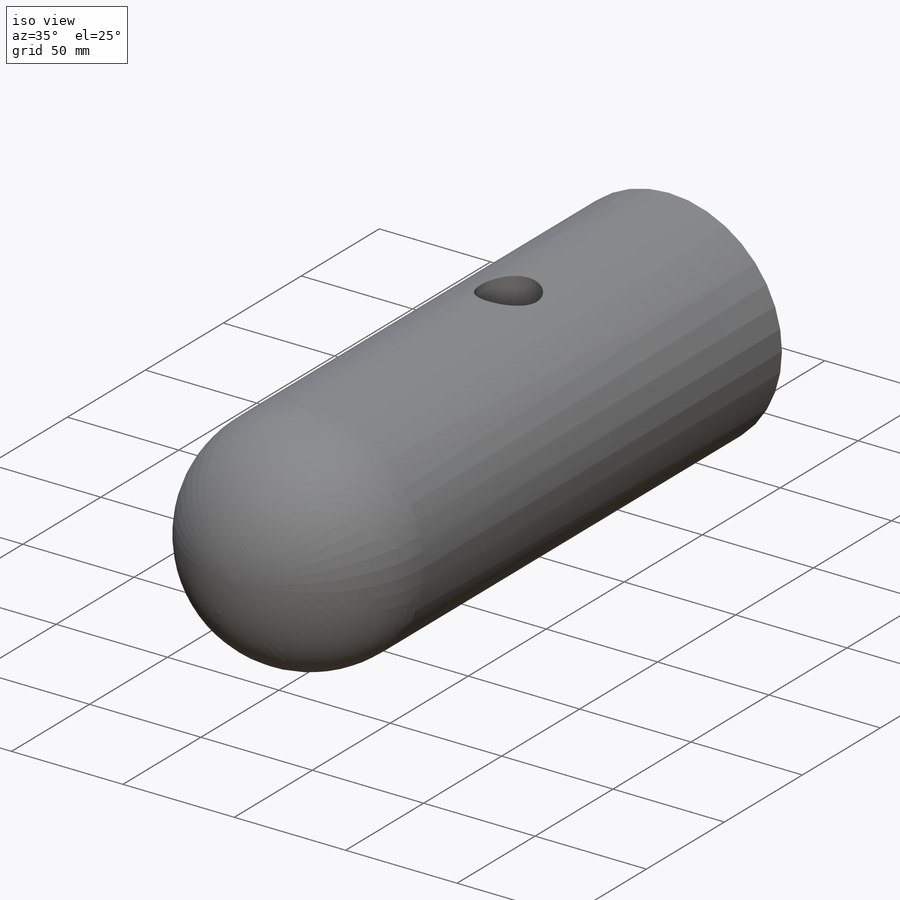
[diagram: iso view]
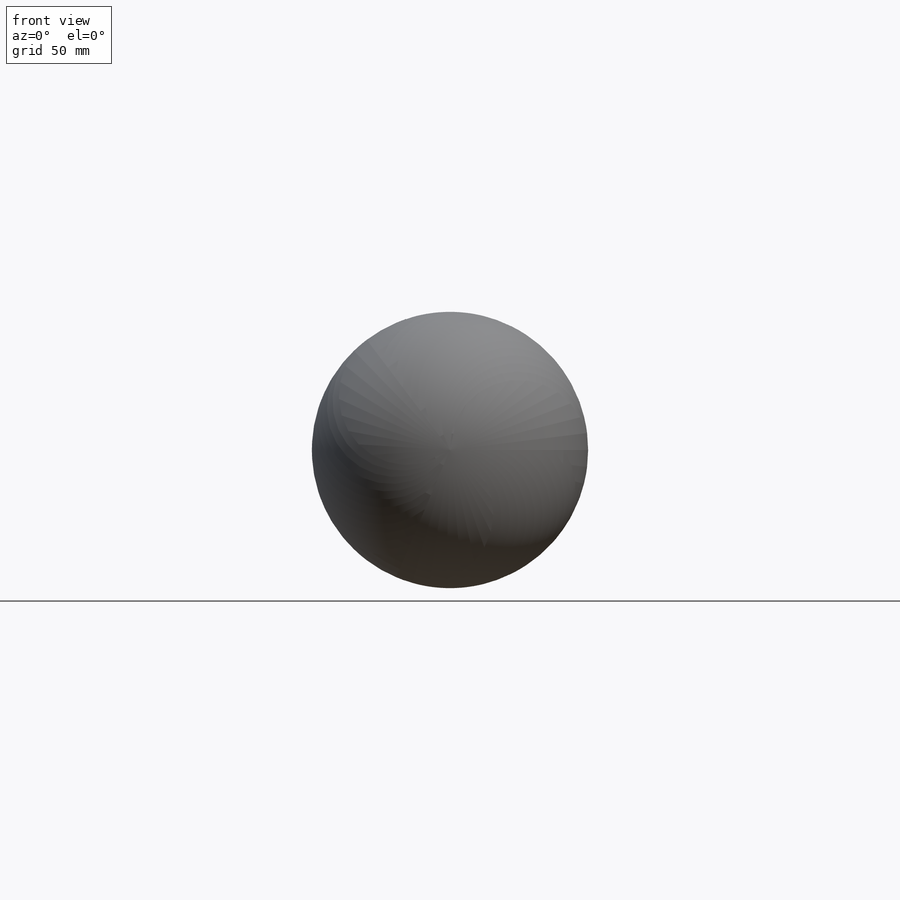
[diagram: front view]
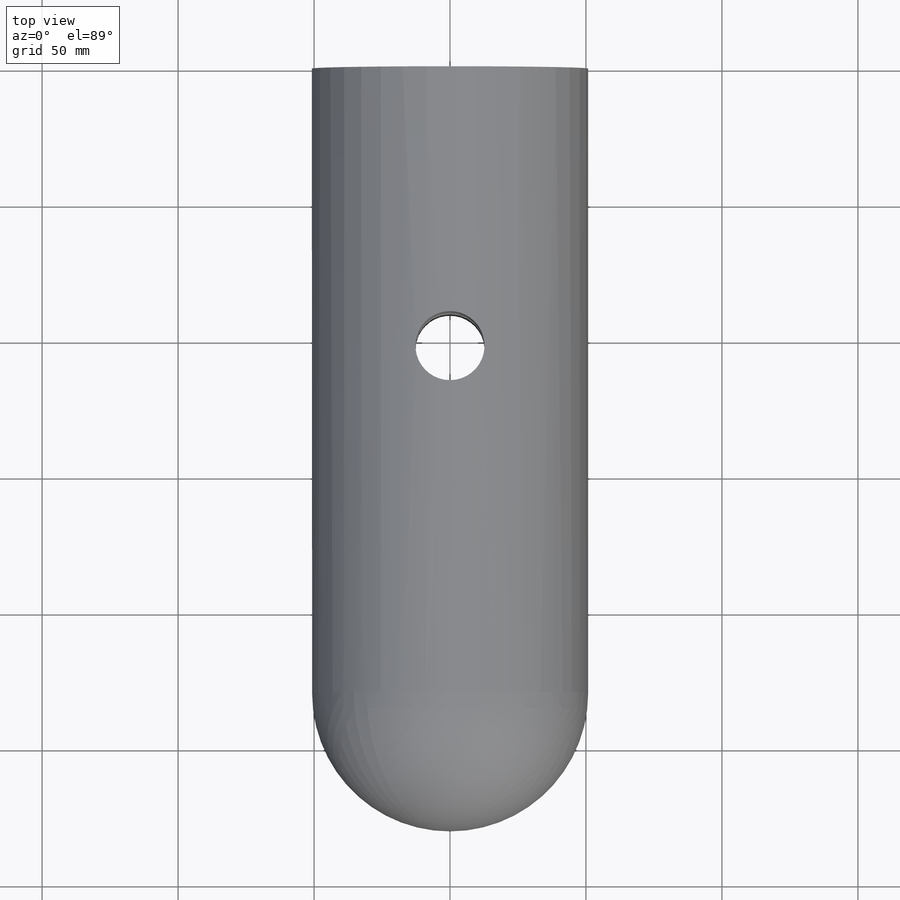
[diagram: top view]
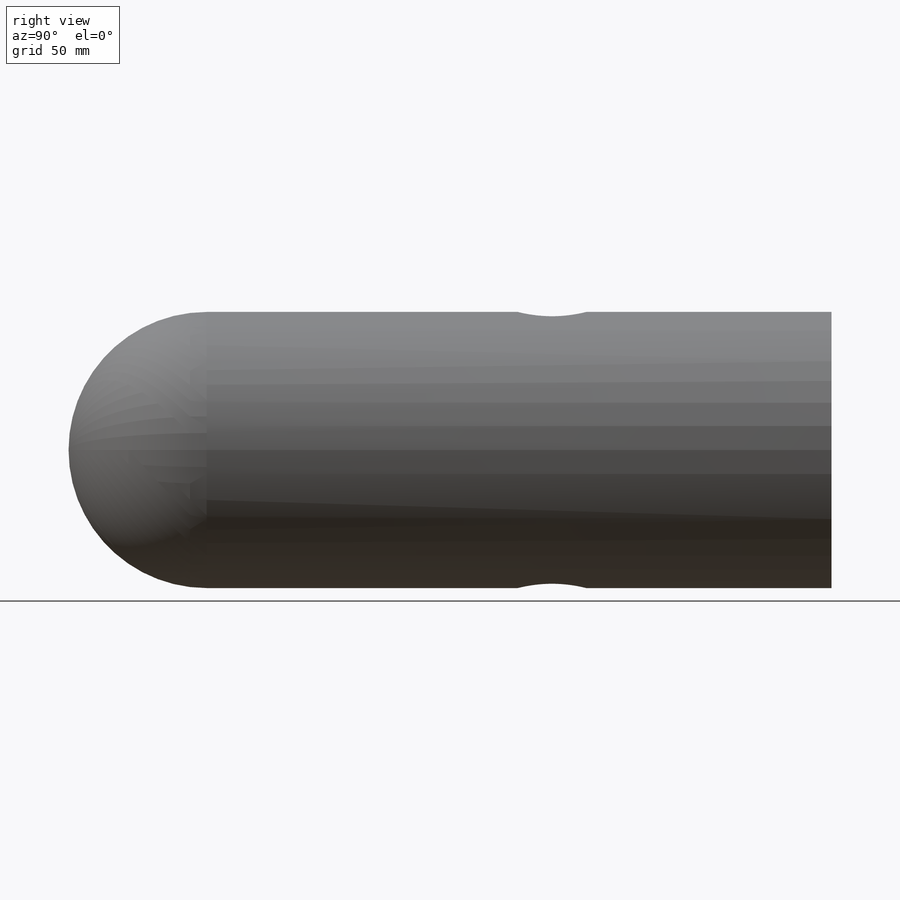
[diagram: right view]
SOLIDWORKS PART (.sldprt)
format: sldprt  version: not decoded by parser v0  size: 222,720 bytes
history: native  units: mm
features: sketch x3, cut_extrude x2, material x1, extrude x1, dome x1, shell x1 (+11 scaffold rows collapsed)
feature tree (20):
  scaffold x11  (default folders/planes/origin — collapsed)
  material  "Material <not specified>"
  sketch  "Sketch1"  dims[D1=101.6mm]
  extrude  "Boss-Extrude1"  Depth=229.755989mm
  dome  "Dome1"
  sketch  "Sketch2"  dims[c1.D1=~7.730205mm c1.D2=~12.037105mm c2.D1=127.0mm]
  cut_extrude  "Cut-Extrude1"  Depth=228.6mm
  shell  "Shell1"  Thickness=6.35mm
  sketch  "Sketch3"  dims[D1=6.35mm D2=6.35mm]
  cut_extrude  "Cut-Extrude2"  Depth=25.4mm
decode coverage: 7 of 8 modeling features carry decoded parameters
note: ~ marks probable driven/reference dimensions
note: suppression state not decoded; provenance and decode notes live in map.json
